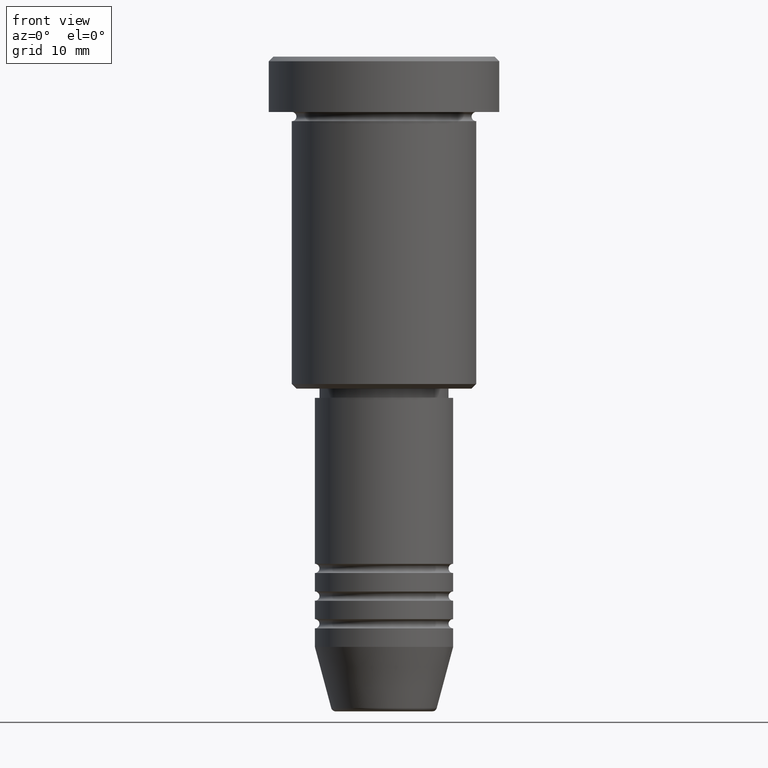
[diagram: clean part render]
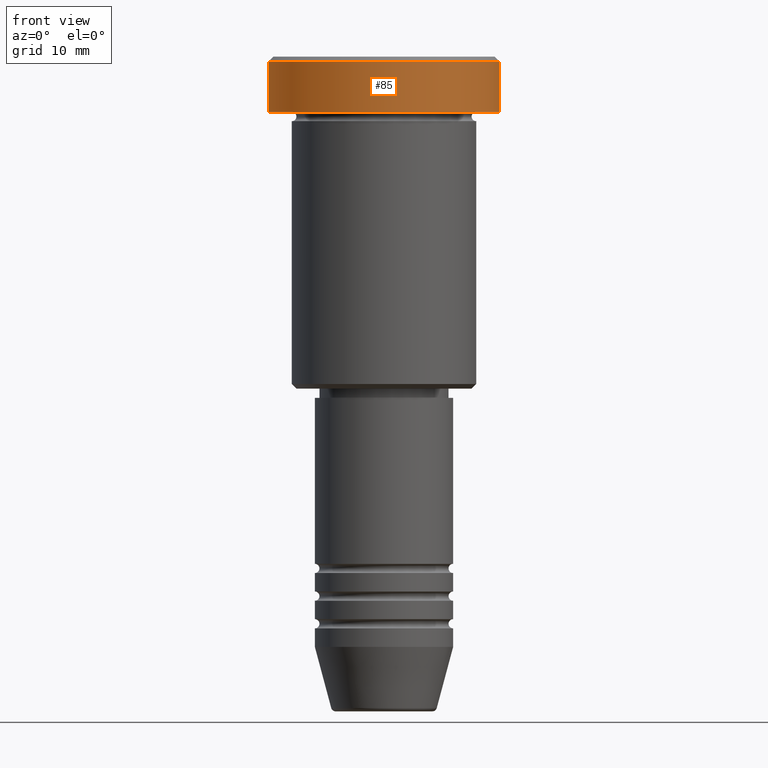
[diagram: same view with one face highlighted and labeled with its STEP entity id]
A machine part, front view. The second image highlights one B-rep face of the part: STEP entity #85.
In plain terms, the highlighted cylindrical surface (partial cylindrical patch) has radius 12.5 mm, axis along (-0, -0, 1).
Its self-contained STEP definition (entity closure, byte-faithful):
#7 = DIRECTION ( 'NONE',  ( 1.000000000000000000, 0.000000000000000000, 0.000000000000000000 ) ) ;
#15 = CARTESIAN_POINT ( 'NONE',  ( 12.50000000000000000, 0.000000000000000000, 0.000000000000000000 ) ) ;
#39 = DIRECTION ( 'NONE',  ( -0.000000000000000000, -0.000000000000000000, 1.000000000000000000 ) ) ;
#40 = VERTEX_POINT ( 'NONE', #717 ) ;
#54 = VECTOR ( 'NONE', #487, 1000.000000000000000 ) ;
#85 = ADVANCED_FACE ( 'NONE', ( #365 ), #729, .T. ) ;
#156 = CARTESIAN_POINT ( 'NONE',  ( 0.000000000000000000, 0.000000000000000000, -0.5000000000000126565 ) ) ;
#158 = AXIS2_PLACEMENT_3D ( 'NONE', #179, #1007, #736 ) ;
#179 = CARTESIAN_POINT ( 'NONE',  ( 0.000000000000000000, 0.000000000000000000, -5.999999999999996447 ) ) ;
#186 = DIRECTION ( 'NONE',  ( -0.000000000000000000, -0.000000000000000000, 1.000000000000000000 ) ) ;
#250 = DIRECTION ( 'NONE',  ( 0.000000000000000000, 0.000000000000000000, -1.000000000000000000 ) ) ;
#251 = CIRCLE ( 'NONE', #158, 12.50000000000000000 ) ;
#306 = CIRCLE ( 'NONE', #971, 12.50000000000000000 ) ;
#310 = EDGE_CURVE ( 'NONE', #661, #40, #306, .T. ) ;
#362 = EDGE_CURVE ( 'NONE', #563, #872, #251, .T. ) ;
#365 = FACE_OUTER_BOUND ( 'NONE', #1168, .T. ) ;
#397 = LINE ( 'NONE', #679, #641 ) ;
#412 = DIRECTION ( 'NONE',  ( 1.000000000000000000, 0.000000000000000000, 0.000000000000000000 ) ) ;
#487 = DIRECTION ( 'NONE',  ( -0.000000000000000000, -0.000000000000000000, 1.000000000000000000 ) ) ;
#563 = VERTEX_POINT ( 'NONE', #584 ) ;
#584 = CARTESIAN_POINT ( 'NONE',  ( -12.50000000000000000, 1.530808498934191521E-15, -5.999999999999996447 ) ) ;
#641 = VECTOR ( 'NONE', #39, 1000.000000000000000 ) ;
#661 = VERTEX_POINT ( 'NONE', #850 ) ;
#679 = CARTESIAN_POINT ( 'NONE',  ( -12.50000000000000000, 1.530808498934191521E-15, 0.000000000000000000 ) ) ;
#714 = CARTESIAN_POINT ( 'NONE',  ( 12.50000000000000000, 0.000000000000000000, -5.999999999999996447 ) ) ;
#717 = CARTESIAN_POINT ( 'NONE',  ( -12.50000000000000000, 1.530808498934191521E-15, -0.5000000000000126565 ) ) ;
#729 = CYLINDRICAL_SURFACE ( 'NONE', #1111, 12.50000000000000000 ) ;
#736 = DIRECTION ( 'NONE',  ( 1.000000000000000000, 0.000000000000000000, 0.000000000000000000 ) ) ;
#768 = LINE ( 'NONE', #15, #54 ) ;
#850 = CARTESIAN_POINT ( 'NONE',  ( 12.50000000000000000, 0.000000000000000000, -0.5000000000000126565 ) ) ;
#872 = VERTEX_POINT ( 'NONE', #714 ) ;
#971 = AXIS2_PLACEMENT_3D ( 'NONE', #156, #250, #412 ) ;
#999 = CARTESIAN_POINT ( 'NONE',  ( 0.000000000000000000, 0.000000000000000000, 0.000000000000000000 ) ) ;
#1007 = DIRECTION ( 'NONE',  ( -0.000000000000000000, -0.000000000000000000, 1.000000000000000000 ) ) ;
#1040 = ORIENTED_EDGE ( 'NONE', *, *, #1160, .T. ) ;
#1090 = ORIENTED_EDGE ( 'NONE', *, *, #362, .T. ) ;
#1107 = ORIENTED_EDGE ( 'NONE', *, *, #310, .T. ) ;
#1111 = AXIS2_PLACEMENT_3D ( 'NONE', #999, #186, #7 ) ;
#1140 = ORIENTED_EDGE ( 'NONE', *, *, #1161, .F. ) ;
#1160 = EDGE_CURVE ( 'NONE', #872, #661, #768, .T. ) ;
#1161 = EDGE_CURVE ( 'NONE', #563, #40, #397, .T. ) ;
#1168 = EDGE_LOOP ( 'NONE', ( #1140, #1090, #1040, #1107 ) ) ;